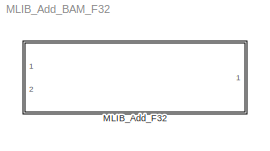
MODEL MLIB_Add_BAM_F32
KIND model
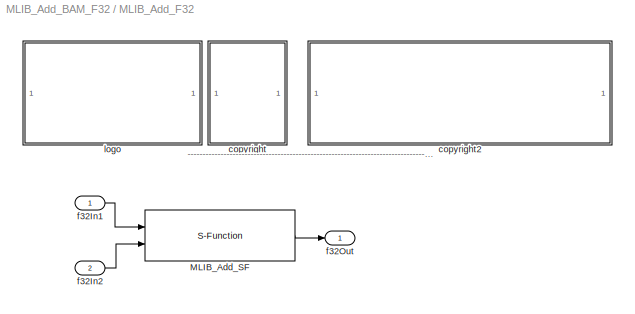
BLOCK [SubSystem] MLIB_Add_F32
  Ports = [2, 1]
  RequestExecContextInheritance = off
  SID = 1
BLOCK [S-Function] MLIB_Add_F32/MLIB_Add_SF
  EnableBusSupport = off
  FunctionName = MLIB_Add_SF_F32
  Ports = [2, 1]
  SID = 4
BLOCK [SubSystem] MLIB_Add_F32/<copyright redacted>
  Ports = []
  RequestExecContextInheritance = off
  SID = 5
BLOCK [SubSystem] MLIB_Add_F32/copyright2
  Ports = []
  RequestExecContextInheritance = off
  SID = 6
BLOCK [Inport] MLIB_Add_F32/f32In1
  IconDisplay = Port number
  SID = 2
BLOCK [Inport] MLIB_Add_F32/f32In2
  IconDisplay = Port number
  Port = 2
  SID = 3
BLOCK [Outport] MLIB_Add_F32/f32Out
  IconDisplay = Port number
  SID = 8
BLOCK [SubSystem] MLIB_Add_F32/logo
  Ports = []
  RequestExecContextInheritance = off
  SID = 7
ANNOTATION MLIB_Add_F32: ---------------------------------------------------------------------------------------------------------------------------------------------------------------------------------------------------
LINE MLIB_Add_F32/MLIB_Add_SF:1 -> MLIB_Add_F32/f32Out:1
LINE MLIB_Add_F32/f32In1:1 -> MLIB_Add_F32/MLIB_Add_SF:1
LINE MLIB_Add_F32/f32In2:1 -> MLIB_Add_F32/MLIB_Add_SF:2
